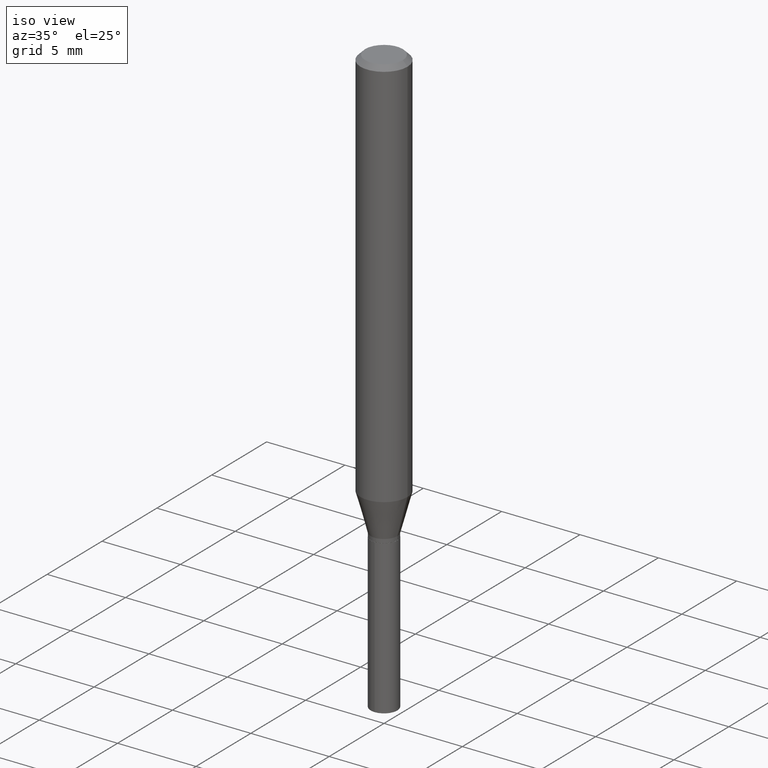
[diagram: clean part render]
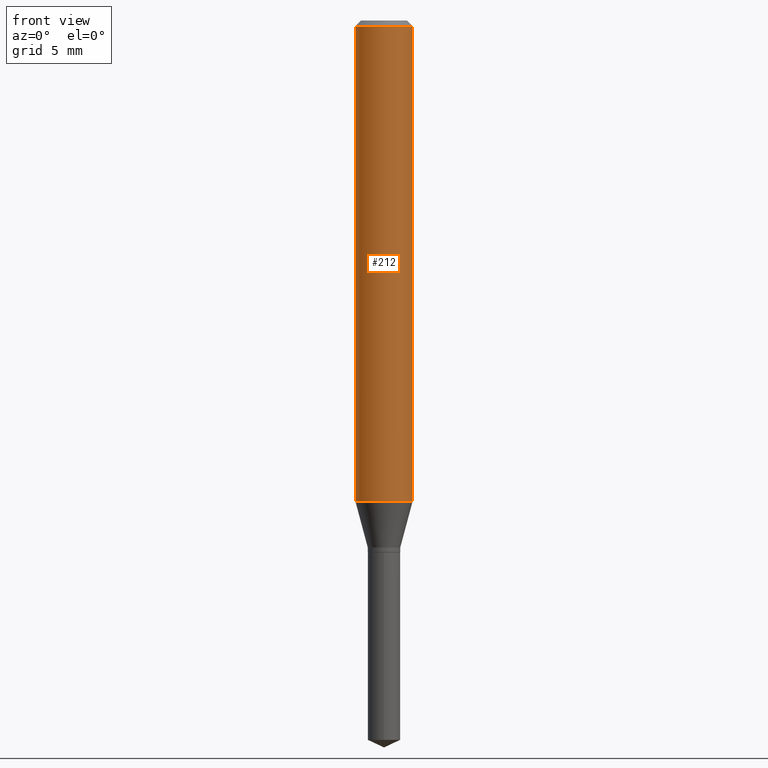
[diagram: tour spotlight — one face highlighted and labeled with its STEP entity id]
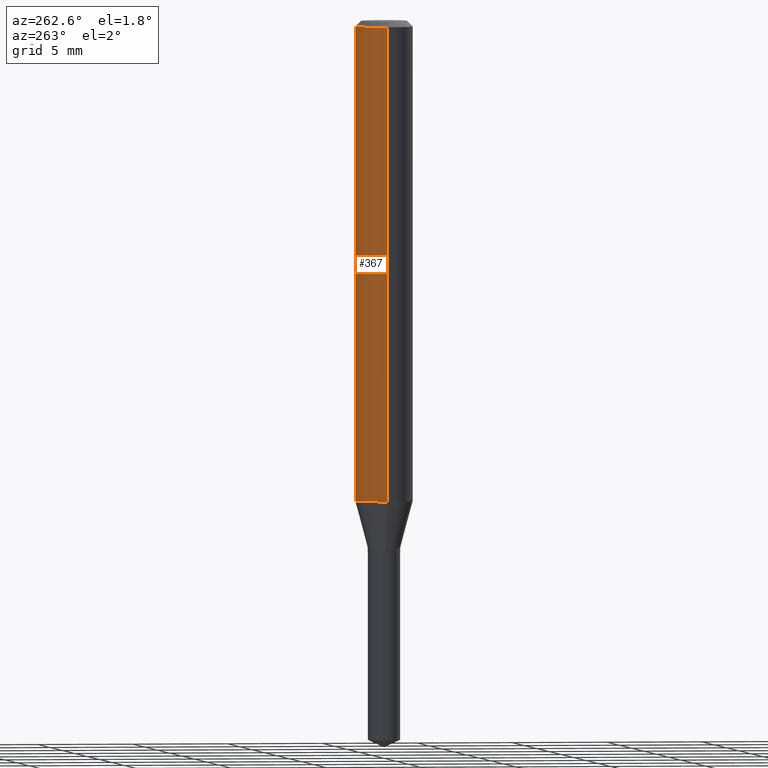
[diagram: tour spotlight — one face highlighted and labeled with its STEP entity id]
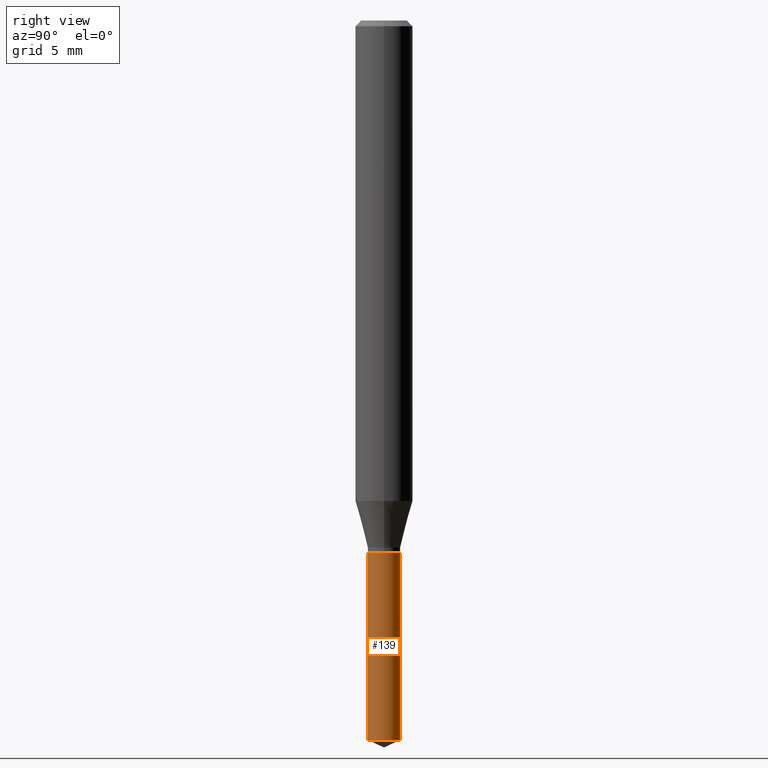
[diagram: tour spotlight — one face highlighted and labeled with its STEP entity id]
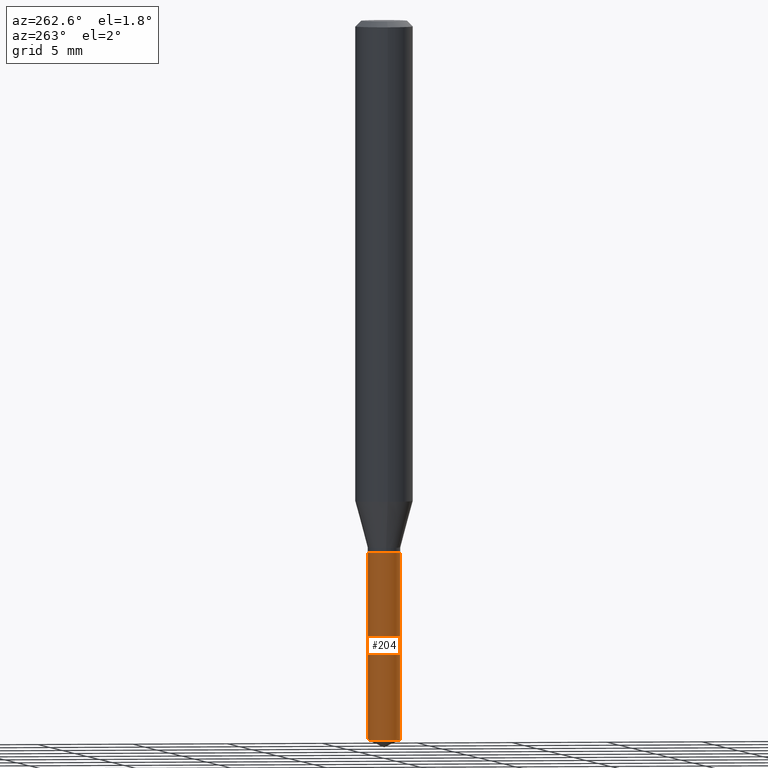
[diagram: tour spotlight — one face highlighted and labeled with its STEP entity id]
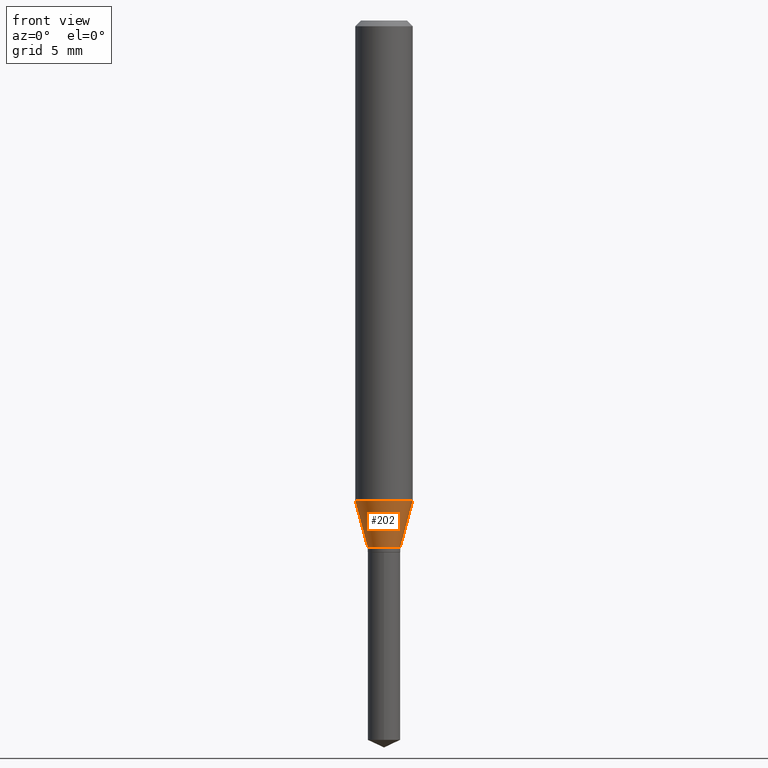
[diagram: tour spotlight — one face highlighted and labeled with its STEP entity id]
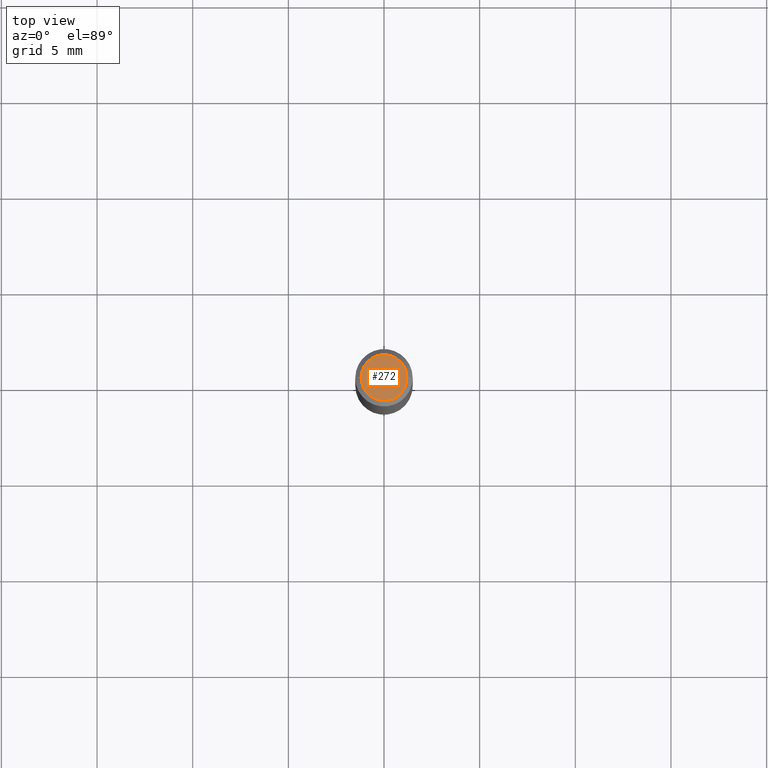
[diagram: tour spotlight — one face highlighted and labeled with its STEP entity id]
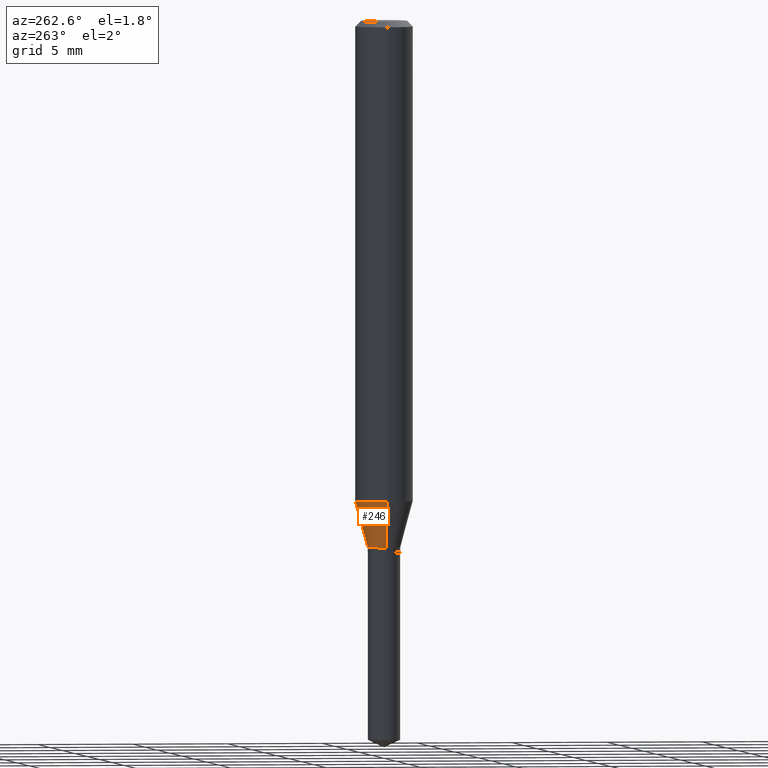
[diagram: tour spotlight — one face highlighted and labeled with its STEP entity id]
A machine part: a face-by-face anatomy tour. The part has 17 B-rep faces; the first image is the clean iso view, then the 7 largest visible faces are spotlighted one at a time (largest first), each with its STEP entity span.

Face 1 — front view, entity #212. In plain terms, the highlighted cylindrical surface (edge-blend (fillet) strip) has radius 1.4999 mm, axis along (-0, 0, 1).
Definition (entity closure, byte-faithful):
#6 = AXIS2_PLACEMENT_3D ( 'NONE', #460, #214, #130 ) ;
#36 = DIRECTION ( 'NONE',  ( 1.000000000000000000, -6.982962677686266711E-15, 0.000000000000000000 ) ) ;
#45 = DIRECTION ( 'NONE',  ( -2.445468806185136597E-29, 3.491481338843145583E-15, 1.000000000000000000 ) ) ;
#65 = CARTESIAN_POINT ( 'NONE',  ( 0.000000000000000000, 0.000000000000000000, 0.000000000000000000 ) ) ;
#115 = CARTESIAN_POINT ( 'NONE',  ( 2.888098660104664204E-31, -4.123439461173780263E-17, -0.01181000000000007218 ) ) ;
#130 = DIRECTION ( 'NONE',  ( 1.000000000000000000, -6.982962677686266711E-15, 0.000000000000000000 ) ) ;
#134 = CIRCLE ( 'NONE', #6, 0.05905000000000011628 ) ;
#172 = LINE ( 'NONE', #181, #273 ) ;
#178 = CYLINDRICAL_SURFACE ( 'NONE', #421, 0.05905000000000006077 ) ;
#179 = DIRECTION ( 'NONE',  ( -2.445468806185136877E-29, 3.491481338843145188E-15, 1.000000000000000000 ) ) ;
#181 = CARTESIAN_POINT ( 'NONE',  ( -0.05905000000000006077, 4.195754854663395916E-16, -2.904631170795524694E-30 ) ) ;
#212 = ADVANCED_FACE ( 'NONE', ( #474 ), #178, .T. ) ;
#214 = DIRECTION ( 'NONE',  ( -2.445468806185136597E-29, 3.491481338843145583E-15, 1.000000000000000000 ) ) ;
#221 = EDGE_CURVE ( 'NONE', #292, #336, #134, .T. ) ;
#239 = ORIENTED_EDGE ( 'NONE', *, *, #393, .F. ) ;
#241 = VERTEX_POINT ( 'NONE', #310 ) ;
#250 = VECTOR ( 'NONE', #179, 39.37007874015748143 ) ;
#261 = EDGE_LOOP ( 'NONE', ( #239, #314, #316, #437 ) ) ;
#273 = VECTOR ( 'NONE', #428, 39.37007874015748143 ) ;
#291 = CARTESIAN_POINT ( 'NONE',  ( 0.05905000000000006077, -4.123439461173744764E-16, 2.879382386107503023E-30 ) ) ;
#292 = VERTEX_POINT ( 'NONE', #442 ) ;
#304 = EDGE_CURVE ( 'NONE', #241, #360, #405, .T. ) ;
#310 = CARTESIAN_POINT ( 'NONE',  ( -0.05904999999999999832, -1.327508530224135714E-15, -0.01181000000000007218 ) ) ;
#314 = ORIENTED_EDGE ( 'NONE', *, *, #221, .T. ) ;
#316 = ORIENTED_EDGE ( 'NONE', *, *, #469, .T. ) ;
#317 = CARTESIAN_POINT ( 'NONE',  ( 0.05905000000000011628, -3.865277582886589578E-15, -0.9889594993262362799 ) ) ;
#336 = VERTEX_POINT ( 'NONE', #317 ) ;
#352 = LINE ( 'NONE', #291, #250 ) ;
#356 = DIRECTION ( 'NONE',  ( 1.000000000000000000, -6.982962677686266711E-15, 4.876176775795935793E-29 ) ) ;
#360 = VERTEX_POINT ( 'NONE', #467 ) ;
#393 = EDGE_CURVE ( 'NONE', #292, #241, #172, .T. ) ;
#402 = DIRECTION ( 'NONE',  ( -2.445468806185136597E-29, 3.491481338843145583E-15, 1.000000000000000000 ) ) ;
#405 = CIRCLE ( 'NONE', #477, 0.05904999999999999832 ) ;
#421 = AXIS2_PLACEMENT_3D ( 'NONE', #65, #402, #356 ) ;
#428 = DIRECTION ( 'NONE',  ( -2.445468806185136877E-29, 3.491481338843145188E-15, 1.000000000000000000 ) ) ;
#437 = ORIENTED_EDGE ( 'NONE', *, *, #304, .F. ) ;
#442 = CARTESIAN_POINT ( 'NONE',  ( -0.05905000000000011628, -3.033358151302874771E-15, -0.9889594993262362799 ) ) ;
#460 = CARTESIAN_POINT ( 'NONE',  ( 2.418469606182781541E-29, -3.452933636769214658E-15, -0.9889594993262362799 ) ) ;
#467 = CARTESIAN_POINT ( 'NONE',  ( 0.05904999999999999832, -4.535783407291118600E-16, -0.01181000000000007218 ) ) ;
#469 = EDGE_CURVE ( 'NONE', #336, #360, #352, .T. ) ;
#474 = FACE_OUTER_BOUND ( 'NONE', #261, .T. ) ;
#477 = AXIS2_PLACEMENT_3D ( 'NONE', #115, #45, #36 ) ;

Face 2 — auxiliary view, entity #367. In plain terms, the highlighted cylindrical surface (edge-blend (fillet) strip) has radius 1.4999 mm, axis along (-0, 0, 1).
Definition (entity closure, byte-faithful):
#19 = ORIENTED_EDGE ( 'NONE', *, *, #469, .F. ) ;
#23 = AXIS2_PLACEMENT_3D ( 'NONE', #117, #413, #52 ) ;
#31 = AXIS2_PLACEMENT_3D ( 'NONE', #48, #155, #294 ) ;
#38 = CYLINDRICAL_SURFACE ( 'NONE', #23, 0.05905000000000006077 ) ;
#48 = CARTESIAN_POINT ( 'NONE',  ( 2.888098660104664204E-31, -4.123439461173780263E-17, -0.01181000000000007218 ) ) ;
#52 = DIRECTION ( 'NONE',  ( 1.000000000000000000, -6.982962677686266711E-15, 4.876176775795935793E-29 ) ) ;
#80 = EDGE_LOOP ( 'NONE', ( #328, #82, #149, #19 ) ) ;
#82 = ORIENTED_EDGE ( 'NONE', *, *, #393, .T. ) ;
#117 = CARTESIAN_POINT ( 'NONE',  ( 0.000000000000000000, 0.000000000000000000, 0.000000000000000000 ) ) ;
#149 = ORIENTED_EDGE ( 'NONE', *, *, #299, .F. ) ;
#155 = DIRECTION ( 'NONE',  ( -2.445468806185136597E-29, 3.491481338843145583E-15, 1.000000000000000000 ) ) ;
#172 = LINE ( 'NONE', #181, #273 ) ;
#179 = DIRECTION ( 'NONE',  ( -2.445468806185136877E-29, 3.491481338843145188E-15, 1.000000000000000000 ) ) ;
#181 = CARTESIAN_POINT ( 'NONE',  ( -0.05905000000000006077, 4.195754854663395916E-16, -2.904631170795524694E-30 ) ) ;
#220 = DIRECTION ( 'NONE',  ( -2.445468806185136597E-29, 3.491481338843145583E-15, 1.000000000000000000 ) ) ;
#241 = VERTEX_POINT ( 'NONE', #310 ) ;
#250 = VECTOR ( 'NONE', #179, 39.37007874015748143 ) ;
#251 = CARTESIAN_POINT ( 'NONE',  ( 2.418469606182781541E-29, -3.452933636769214658E-15, -0.9889594993262362799 ) ) ;
#259 = FACE_OUTER_BOUND ( 'NONE', #80, .T. ) ;
#269 = AXIS2_PLACEMENT_3D ( 'NONE', #251, #220, #319 ) ;
#273 = VECTOR ( 'NONE', #428, 39.37007874015748143 ) ;
#291 = CARTESIAN_POINT ( 'NONE',  ( 0.05905000000000006077, -4.123439461173744764E-16, 2.879382386107503023E-30 ) ) ;
#292 = VERTEX_POINT ( 'NONE', #442 ) ;
#294 = DIRECTION ( 'NONE',  ( 1.000000000000000000, -6.982962677686266711E-15, 0.000000000000000000 ) ) ;
#299 = EDGE_CURVE ( 'NONE', #360, #241, #321, .T. ) ;
#310 = CARTESIAN_POINT ( 'NONE',  ( -0.05904999999999999832, -1.327508530224135714E-15, -0.01181000000000007218 ) ) ;
#317 = CARTESIAN_POINT ( 'NONE',  ( 0.05905000000000011628, -3.865277582886589578E-15, -0.9889594993262362799 ) ) ;
#319 = DIRECTION ( 'NONE',  ( 1.000000000000000000, -6.982962677686266711E-15, 0.000000000000000000 ) ) ;
#321 = CIRCLE ( 'NONE', #31, 0.05904999999999999832 ) ;
#328 = ORIENTED_EDGE ( 'NONE', *, *, #478, .T. ) ;
#336 = VERTEX_POINT ( 'NONE', #317 ) ;
#343 = CIRCLE ( 'NONE', #269, 0.05905000000000011628 ) ;
#352 = LINE ( 'NONE', #291, #250 ) ;
#360 = VERTEX_POINT ( 'NONE', #467 ) ;
#367 = ADVANCED_FACE ( 'NONE', ( #259 ), #38, .T. ) ;
#393 = EDGE_CURVE ( 'NONE', #292, #241, #172, .T. ) ;
#413 = DIRECTION ( 'NONE',  ( -2.445468806185136597E-29, 3.491481338843145583E-15, 1.000000000000000000 ) ) ;
#428 = DIRECTION ( 'NONE',  ( -2.445468806185136877E-29, 3.491481338843145188E-15, 1.000000000000000000 ) ) ;
#442 = CARTESIAN_POINT ( 'NONE',  ( -0.05905000000000011628, -3.033358151302874771E-15, -0.9889594993262362799 ) ) ;
#467 = CARTESIAN_POINT ( 'NONE',  ( 0.05904999999999999832, -4.535783407291118600E-16, -0.01181000000000007218 ) ) ;
#469 = EDGE_CURVE ( 'NONE', #336, #360, #352, .T. ) ;
#478 = EDGE_CURVE ( 'NONE', #336, #292, #343, .T. ) ;

Face 3 — right view, entity #139. In plain terms, the highlighted cylindrical surface (edge-blend (fillet) strip) has radius 0.8496 mm, axis along (-0, 0, 1).
Definition (entity closure, byte-faithful):
#4 = CYLINDRICAL_SURFACE ( 'NONE', #283, 0.03345000000000000057 ) ;
#5 = CIRCLE ( 'NONE', #49, 0.03345000000000000057 ) ;
#12 = CIRCLE ( 'NONE', #335, 0.03345000000000000057 ) ;
#26 = DIRECTION ( 'NONE',  ( -2.445402730703145379E-29, 3.491575962694140016E-15, 1.000000000000000000 ) ) ;
#37 = CARTESIAN_POINT ( 'NONE',  ( 2.376765451117897545E-16, 0.03344999999999617724, -1.094500000000000028 ) ) ;
#43 = VERTEX_POINT ( 'NONE', #37 ) ;
#49 = AXIS2_PLACEMENT_3D ( 'NONE', #412, #309, #208 ) ;
#60 = DIRECTION ( 'NONE',  ( -2.445402730703145379E-29, 3.491575962694140016E-15, 1.000000000000000000 ) ) ;
#87 = EDGE_CURVE ( 'NONE', #481, #102, #5, .T. ) ;
#88 = CARTESIAN_POINT ( 'NONE',  ( -2.335801015685788365E-16, -0.03345000000000382390, -1.094499999999999806 ) ) ;
#91 = FACE_OUTER_BOUND ( 'NONE', #345, .T. ) ;
#99 = CARTESIAN_POINT ( 'NONE',  ( -2.335801015685788365E-16, -0.03345000000000382390, -1.094499999999999806 ) ) ;
#102 = VERTEX_POINT ( 'NONE', #121 ) ;
#121 = CARTESIAN_POINT ( 'NONE',  ( 2.376765451117897052E-16, 0.03344999999999482415, -1.480502008834715610 ) ) ;
#124 = DIRECTION ( 'NONE',  ( -2.445402730703145379E-29, 3.491575962694140016E-15, 1.000000000000000000 ) ) ;
#126 = DIRECTION ( 'NONE',  ( -2.445402730703145379E-29, 3.491575962694140016E-15, 1.000000000000000000 ) ) ;
#127 = DIRECTION ( 'NONE',  ( -6.982962677686264344E-15, -1.000000000000000000, 4.083479811157344024E-15 ) ) ;
#139 = ADVANCED_FACE ( 'NONE', ( #91 ), #4, .T. ) ;
#166 = VECTOR ( 'NONE', #26, 39.37007874015748143 ) ;
#192 = ORIENTED_EDGE ( 'NONE', *, *, #87, .T. ) ;
#208 = DIRECTION ( 'NONE',  ( -6.982962677686264344E-15, -1.000000000000000000, 0.000000000000000000 ) ) ;
#215 = DIRECTION ( 'NONE',  ( -6.982962677686264344E-15, -1.000000000000000000, 4.083479811157344024E-15 ) ) ;
#253 = EDGE_CURVE ( 'NONE', #102, #43, #385, .T. ) ;
#263 = ORIENTED_EDGE ( 'NONE', *, *, #376, .F. ) ;
#283 = AXIS2_PLACEMENT_3D ( 'NONE', #375, #126, #127 ) ;
#309 = DIRECTION ( 'NONE',  ( -2.445402730703145379E-29, 3.491575962694140016E-15, 1.000000000000000000 ) ) ;
#322 = ORIENTED_EDGE ( 'NONE', *, *, #415, .F. ) ;
#335 = AXIS2_PLACEMENT_3D ( 'NONE', #384, #60, #215 ) ;
#345 = EDGE_LOOP ( 'NONE', ( #192, #458, #322, #263 ) ) ;
#375 = CARTESIAN_POINT ( 'NONE',  ( 2.676565608369631794E-29, -3.821426325363822773E-15, -1.094499999999999806 ) ) ;
#376 = EDGE_CURVE ( 'NONE', #481, #424, #379, .T. ) ;
#379 = LINE ( 'NONE', #88, #166 ) ;
#384 = CARTESIAN_POINT ( 'NONE',  ( 2.676565608369631794E-29, -3.821426325363822773E-15, -1.094499999999999806 ) ) ;
#385 = LINE ( 'NONE', #466, #416 ) ;
#412 = CARTESIAN_POINT ( 'NONE',  ( 3.620495974830945806E-29, -5.169181660962767472E-15, -1.480502008834715610 ) ) ;
#415 = EDGE_CURVE ( 'NONE', #424, #43, #12, .T. ) ;
#416 = VECTOR ( 'NONE', #124, 39.37007874015748143 ) ;
#424 = VERTEX_POINT ( 'NONE', #99 ) ;
#425 = CARTESIAN_POINT ( 'NONE',  ( -2.335801015685693209E-16, -0.03345000000000517004, -1.480502008834715610 ) ) ;
#458 = ORIENTED_EDGE ( 'NONE', *, *, #253, .T. ) ;
#466 = CARTESIAN_POINT ( 'NONE',  ( 2.376765451117802389E-16, 0.03344999999999617724, -1.094500000000000028 ) ) ;
#481 = VERTEX_POINT ( 'NONE', #425 ) ;

Face 4 — auxiliary view, entity #204. In plain terms, the highlighted cylindrical surface (edge-blend (fillet) strip) has radius 0.8496 mm, axis along (-0, 0, 1).
Definition (entity closure, byte-faithful):
#11 = AXIS2_PLACEMENT_3D ( 'NONE', #190, #410, #439 ) ;
#26 = DIRECTION ( 'NONE',  ( -2.445402730703145379E-29, 3.491575962694140016E-15, 1.000000000000000000 ) ) ;
#27 = CYLINDRICAL_SURFACE ( 'NONE', #152, 0.03345000000000000057 ) ;
#37 = CARTESIAN_POINT ( 'NONE',  ( 2.376765451117897545E-16, 0.03344999999999617724, -1.094500000000000028 ) ) ;
#43 = VERTEX_POINT ( 'NONE', #37 ) ;
#46 = EDGE_CURVE ( 'NONE', #43, #424, #232, .T. ) ;
#64 = AXIS2_PLACEMENT_3D ( 'NONE', #169, #348, #422 ) ;
#88 = CARTESIAN_POINT ( 'NONE',  ( -2.335801015685788365E-16, -0.03345000000000382390, -1.094499999999999806 ) ) ;
#99 = CARTESIAN_POINT ( 'NONE',  ( -2.335801015685788365E-16, -0.03345000000000382390, -1.094499999999999806 ) ) ;
#102 = VERTEX_POINT ( 'NONE', #121 ) ;
#112 = DIRECTION ( 'NONE',  ( -2.445402730703145379E-29, 3.491575962694140016E-15, 1.000000000000000000 ) ) ;
#119 = ORIENTED_EDGE ( 'NONE', *, *, #411, .T. ) ;
#121 = CARTESIAN_POINT ( 'NONE',  ( 2.376765451117897052E-16, 0.03344999999999482415, -1.480502008834715610 ) ) ;
#124 = DIRECTION ( 'NONE',  ( -2.445402730703145379E-29, 3.491575962694140016E-15, 1.000000000000000000 ) ) ;
#152 = AXIS2_PLACEMENT_3D ( 'NONE', #188, #112, #262 ) ;
#166 = VECTOR ( 'NONE', #26, 39.37007874015748143 ) ;
#168 = ORIENTED_EDGE ( 'NONE', *, *, #376, .T. ) ;
#169 = CARTESIAN_POINT ( 'NONE',  ( 3.620495974830945806E-29, -5.169181660962767472E-15, -1.480502008834715610 ) ) ;
#180 = FACE_OUTER_BOUND ( 'NONE', #420, .T. ) ;
#184 = CIRCLE ( 'NONE', #64, 0.03345000000000000057 ) ;
#188 = CARTESIAN_POINT ( 'NONE',  ( 2.676565608369631794E-29, -3.821426325363822773E-15, -1.094499999999999806 ) ) ;
#190 = CARTESIAN_POINT ( 'NONE',  ( 2.676565608369631794E-29, -3.821426325363822773E-15, -1.094499999999999806 ) ) ;
#204 = ADVANCED_FACE ( 'NONE', ( #180 ), #27, .T. ) ;
#232 = CIRCLE ( 'NONE', #11, 0.03345000000000000057 ) ;
#253 = EDGE_CURVE ( 'NONE', #102, #43, #385, .T. ) ;
#262 = DIRECTION ( 'NONE',  ( -6.982962677686264344E-15, -1.000000000000000000, 4.083479811157344024E-15 ) ) ;
#275 = ORIENTED_EDGE ( 'NONE', *, *, #46, .F. ) ;
#348 = DIRECTION ( 'NONE',  ( -2.445402730703145379E-29, 3.491575962694140016E-15, 1.000000000000000000 ) ) ;
#376 = EDGE_CURVE ( 'NONE', #481, #424, #379, .T. ) ;
#379 = LINE ( 'NONE', #88, #166 ) ;
#385 = LINE ( 'NONE', #466, #416 ) ;
#401 = ORIENTED_EDGE ( 'NONE', *, *, #253, .F. ) ;
#410 = DIRECTION ( 'NONE',  ( -2.445402730703145379E-29, 3.491575962694140016E-15, 1.000000000000000000 ) ) ;
#411 = EDGE_CURVE ( 'NONE', #102, #481, #184, .T. ) ;
#416 = VECTOR ( 'NONE', #124, 39.37007874015748143 ) ;
#420 = EDGE_LOOP ( 'NONE', ( #401, #119, #168, #275 ) ) ;
#422 = DIRECTION ( 'NONE',  ( -6.982962677686264344E-15, -1.000000000000000000, 0.000000000000000000 ) ) ;
#424 = VERTEX_POINT ( 'NONE', #99 ) ;
#425 = CARTESIAN_POINT ( 'NONE',  ( -2.335801015685693209E-16, -0.03345000000000517004, -1.480502008834715610 ) ) ;
#439 = DIRECTION ( 'NONE',  ( -6.982962677686264344E-15, -1.000000000000000000, 4.083479811157344024E-15 ) ) ;
#466 = CARTESIAN_POINT ( 'NONE',  ( 2.376765451117802389E-16, 0.03344999999999617724, -1.094500000000000028 ) ) ;
#481 = VERTEX_POINT ( 'NONE', #425 ) ;

Face 5 — front view, entity #202. In plain terms, the highlighted conical surface has half-angle 15 deg.
Definition (entity closure, byte-faithful):
#6 = AXIS2_PLACEMENT_3D ( 'NONE', #460, #214, #130 ) ;
#14 = ORIENTED_EDGE ( 'NONE', *, *, #457, .F. ) ;
#18 = DIRECTION ( 'NONE',  ( -2.445468806185136597E-29, 3.491481338843145583E-15, 1.000000000000000000 ) ) ;
#24 = CARTESIAN_POINT ( 'NONE',  ( 0.03344999999999998669, -4.020091613543996190E-15, -1.084499999999999797 ) ) ;
#25 = DIRECTION ( 'NONE',  ( -0.2588190451025213501, 5.211531920934551042E-15, 0.9659258262890682012 ) ) ;
#50 = CONICAL_SURFACE ( 'NONE', #57, 0.03344999999999998669, 0.2617993877991500740 ) ;
#57 = AXIS2_PLACEMENT_3D ( 'NONE', #150, #438, #247 ) ;
#59 = VERTEX_POINT ( 'NONE', #125 ) ;
#114 = EDGE_CURVE ( 'NONE', #378, #336, #235, .T. ) ;
#123 = ORIENTED_EDGE ( 'NONE', *, *, #221, .F. ) ;
#125 = CARTESIAN_POINT ( 'NONE',  ( -0.03344999999999998669, -3.565419503223141645E-15, -1.084499999999999797 ) ) ;
#130 = DIRECTION ( 'NONE',  ( 1.000000000000000000, -6.982962677686266711E-15, 0.000000000000000000 ) ) ;
#132 = EDGE_LOOP ( 'NONE', ( #14, #256, #271, #123 ) ) ;
#134 = CIRCLE ( 'NONE', #6, 0.05905000000000011628 ) ;
#143 = FACE_OUTER_BOUND ( 'NONE', #132, .T. ) ;
#150 = CARTESIAN_POINT ( 'NONE',  ( 2.652110920307780249E-29, -3.786511511975391124E-15, -1.084499999999999797 ) ) ;
#163 = CARTESIAN_POINT ( 'NONE',  ( 0.03344999999999998669, -4.020091613543996190E-15, -1.084499999999999797 ) ) ;
#197 = CIRCLE ( 'NONE', #455, 0.03344999999999998669 ) ;
#202 = ADVANCED_FACE ( 'NONE', ( #143 ), #50, .T. ) ;
#214 = DIRECTION ( 'NONE',  ( -2.445468806185136597E-29, 3.491481338843145583E-15, 1.000000000000000000 ) ) ;
#221 = EDGE_CURVE ( 'NONE', #292, #336, #134, .T. ) ;
#235 = LINE ( 'NONE', #163, #325 ) ;
#247 = DIRECTION ( 'NONE',  ( 1.000000000000000000, -6.982962677686267499E-15, 0.000000000000000000 ) ) ;
#248 = LINE ( 'NONE', #357, #450 ) ;
#256 = ORIENTED_EDGE ( 'NONE', *, *, #447, .T. ) ;
#271 = ORIENTED_EDGE ( 'NONE', *, *, #114, .T. ) ;
#287 = CARTESIAN_POINT ( 'NONE',  ( 2.652110920307780249E-29, -3.786511511975391124E-15, -1.084499999999999797 ) ) ;
#292 = VERTEX_POINT ( 'NONE', #442 ) ;
#317 = CARTESIAN_POINT ( 'NONE',  ( 0.05905000000000011628, -3.865277582886589578E-15, -0.9889594993262362799 ) ) ;
#325 = VECTOR ( 'NONE', #452, 39.37007874015747433 ) ;
#336 = VERTEX_POINT ( 'NONE', #317 ) ;
#357 = CARTESIAN_POINT ( 'NONE',  ( -0.03344999999999998669, -3.548834966863637756E-15, -1.084499999999999797 ) ) ;
#378 = VERTEX_POINT ( 'NONE', #24 ) ;
#438 = DIRECTION ( 'NONE',  ( -2.445468806185136597E-29, 3.491481338843145583E-15, 1.000000000000000000 ) ) ;
#442 = CARTESIAN_POINT ( 'NONE',  ( -0.05905000000000011628, -3.033358151302874771E-15, -0.9889594993262362799 ) ) ;
#447 = EDGE_CURVE ( 'NONE', #59, #378, #197, .T. ) ;
#450 = VECTOR ( 'NONE', #25, 39.37007874015747433 ) ;
#452 = DIRECTION ( 'NONE',  ( 0.2588190451025213501, 1.565188264969621968E-15, 0.9659258262890682012 ) ) ;
#455 = AXIS2_PLACEMENT_3D ( 'NONE', #287, #18, #475 ) ;
#457 = EDGE_CURVE ( 'NONE', #59, #292, #248, .T. ) ;
#460 = CARTESIAN_POINT ( 'NONE',  ( 2.418469606182781541E-29, -3.452933636769214658E-15, -0.9889594993262362799 ) ) ;
#475 = DIRECTION ( 'NONE',  ( 1.000000000000000000, -6.982962677686267499E-15, 0.000000000000000000 ) ) ;

Face 6 — top view, entity #272. In plain terms, the highlighted planar face has unit normal (0, -0, -1).
Definition (entity closure, byte-faithful):
#2 = FACE_OUTER_BOUND ( 'NONE', #267, .T. ) ;
#16 = ORIENTED_EDGE ( 'NONE', *, *, #387, .T. ) ;
#22 = CARTESIAN_POINT ( 'NONE',  ( 8.265746106709734507E-48, -1.180129479067563789E-33, -3.380025165646692144E-19 ) ) ;
#54 = CARTESIAN_POINT ( 'NONE',  ( 8.265746106709734507E-48, -1.180129479067563789E-33, -3.380025165646692144E-19 ) ) ;
#61 = VERTEX_POINT ( 'NONE', #456 ) ;
#70 = DIRECTION ( 'NONE',  ( 1.000000000000000000, -6.982962677686266711E-15, 4.876185090822587894E-29 ) ) ;
#83 = EDGE_CURVE ( 'NONE', #61, #451, #476, .T. ) ;
#94 = DIRECTION ( 'NONE',  ( -1.000000000000000000, 6.982962677686265922E-15, -4.876176775795935793E-29 ) ) ;
#95 = ORIENTED_EDGE ( 'NONE', *, *, #83, .T. ) ;
#96 = AXIS2_PLACEMENT_3D ( 'NONE', #453, #445, #94 ) ;
#159 = DIRECTION ( 'NONE',  ( -2.445468806185136597E-29, 3.491481338843145583E-15, 1.000000000000000000 ) ) ;
#219 = CARTESIAN_POINT ( 'NONE',  ( -0.04724000000000000421, 3.504923541997677355E-16, -3.380025165670481712E-19 ) ) ;
#234 = CIRCLE ( 'NONE', #487, 0.04724000000000000421 ) ;
#267 = EDGE_LOOP ( 'NONE', ( #16, #95 ) ) ;
#268 = AXIS2_PLACEMENT_3D ( 'NONE', #54, #159, #307 ) ;
#272 = ADVANCED_FACE ( 'NONE', ( #2 ), #409, .F. ) ;
#307 = DIRECTION ( 'NONE',  ( 1.000000000000000000, -6.982962677686266711E-15, 4.876185090822587894E-29 ) ) ;
#337 = DIRECTION ( 'NONE',  ( -2.445468806185136597E-29, 3.491481338843145583E-15, 1.000000000000000000 ) ) ;
#387 = EDGE_CURVE ( 'NONE', #451, #61, #234, .T. ) ;
#409 = PLANE ( 'NONE',  #96 ) ;
#445 = DIRECTION ( 'NONE',  ( 2.438088387897960049E-29, -3.491481338843145188E-15, -1.000000000000000000 ) ) ;
#451 = VERTEX_POINT ( 'NONE', #219 ) ;
#453 = CARTESIAN_POINT ( 'NONE',  ( 4.132873053354867254E-48, -5.900647395337818946E-34, -1.690012582823346072E-19 ) ) ;
#456 = CARTESIAN_POINT ( 'NONE',  ( 0.04724000000000000421, -3.852183633974369345E-16, -3.380025165621689721E-19 ) ) ;
#476 = CIRCLE ( 'NONE', #268, 0.04724000000000000421 ) ;
#487 = AXIS2_PLACEMENT_3D ( 'NONE', #22, #337, #70 ) ;

Face 7 — auxiliary view, entity #246. In plain terms, the highlighted conical surface has half-angle 15 deg.
Definition (entity closure, byte-faithful):
#24 = CARTESIAN_POINT ( 'NONE',  ( 0.03344999999999998669, -4.020091613543996190E-15, -1.084499999999999797 ) ) ;
#25 = DIRECTION ( 'NONE',  ( -0.2588190451025213501, 5.211531920934551042E-15, 0.9659258262890682012 ) ) ;
#59 = VERTEX_POINT ( 'NONE', #125 ) ;
#67 = EDGE_CURVE ( 'NONE', #378, #59, #289, .T. ) ;
#72 = AXIS2_PLACEMENT_3D ( 'NONE', #222, #191, #161 ) ;
#90 = AXIS2_PLACEMENT_3D ( 'NONE', #427, #175, #423 ) ;
#114 = EDGE_CURVE ( 'NONE', #378, #336, #235, .T. ) ;
#125 = CARTESIAN_POINT ( 'NONE',  ( -0.03344999999999998669, -3.565419503223141645E-15, -1.084499999999999797 ) ) ;
#161 = DIRECTION ( 'NONE',  ( 1.000000000000000000, -6.982962677686267499E-15, 0.000000000000000000 ) ) ;
#163 = CARTESIAN_POINT ( 'NONE',  ( 0.03344999999999998669, -4.020091613543996190E-15, -1.084499999999999797 ) ) ;
#175 = DIRECTION ( 'NONE',  ( -2.445468806185136597E-29, 3.491481338843145583E-15, 1.000000000000000000 ) ) ;
#183 = ORIENTED_EDGE ( 'NONE', *, *, #478, .F. ) ;
#191 = DIRECTION ( 'NONE',  ( -2.445468806185136597E-29, 3.491481338843145583E-15, 1.000000000000000000 ) ) ;
#195 = EDGE_LOOP ( 'NONE', ( #479, #386, #183, #338 ) ) ;
#220 = DIRECTION ( 'NONE',  ( -2.445468806185136597E-29, 3.491481338843145583E-15, 1.000000000000000000 ) ) ;
#222 = CARTESIAN_POINT ( 'NONE',  ( 2.652110920307780249E-29, -3.786511511975391124E-15, -1.084499999999999797 ) ) ;
#235 = LINE ( 'NONE', #163, #325 ) ;
#246 = ADVANCED_FACE ( 'NONE', ( #350 ), #260, .T. ) ;
#248 = LINE ( 'NONE', #357, #450 ) ;
#251 = CARTESIAN_POINT ( 'NONE',  ( 2.418469606182781541E-29, -3.452933636769214658E-15, -0.9889594993262362799 ) ) ;
#260 = CONICAL_SURFACE ( 'NONE', #90, 0.03344999999999998669, 0.2617993877991500740 ) ;
#269 = AXIS2_PLACEMENT_3D ( 'NONE', #251, #220, #319 ) ;
#289 = CIRCLE ( 'NONE', #72, 0.03344999999999998669 ) ;
#292 = VERTEX_POINT ( 'NONE', #442 ) ;
#317 = CARTESIAN_POINT ( 'NONE',  ( 0.05905000000000011628, -3.865277582886589578E-15, -0.9889594993262362799 ) ) ;
#319 = DIRECTION ( 'NONE',  ( 1.000000000000000000, -6.982962677686266711E-15, 0.000000000000000000 ) ) ;
#325 = VECTOR ( 'NONE', #452, 39.37007874015747433 ) ;
#336 = VERTEX_POINT ( 'NONE', #317 ) ;
#338 = ORIENTED_EDGE ( 'NONE', *, *, #114, .F. ) ;
#343 = CIRCLE ( 'NONE', #269, 0.05905000000000011628 ) ;
#350 = FACE_OUTER_BOUND ( 'NONE', #195, .T. ) ;
#357 = CARTESIAN_POINT ( 'NONE',  ( -0.03344999999999998669, -3.548834966863637756E-15, -1.084499999999999797 ) ) ;
#378 = VERTEX_POINT ( 'NONE', #24 ) ;
#386 = ORIENTED_EDGE ( 'NONE', *, *, #457, .T. ) ;
#423 = DIRECTION ( 'NONE',  ( 1.000000000000000000, -6.982962677686267499E-15, 0.000000000000000000 ) ) ;
#427 = CARTESIAN_POINT ( 'NONE',  ( 2.652110920307780249E-29, -3.786511511975391124E-15, -1.084499999999999797 ) ) ;
#442 = CARTESIAN_POINT ( 'NONE',  ( -0.05905000000000011628, -3.033358151302874771E-15, -0.9889594993262362799 ) ) ;
#450 = VECTOR ( 'NONE', #25, 39.37007874015747433 ) ;
#452 = DIRECTION ( 'NONE',  ( 0.2588190451025213501, 1.565188264969621968E-15, 0.9659258262890682012 ) ) ;
#457 = EDGE_CURVE ( 'NONE', #59, #292, #248, .T. ) ;
#478 = EDGE_CURVE ( 'NONE', #336, #292, #343, .T. ) ;
#479 = ORIENTED_EDGE ( 'NONE', *, *, #67, .T. ) ;